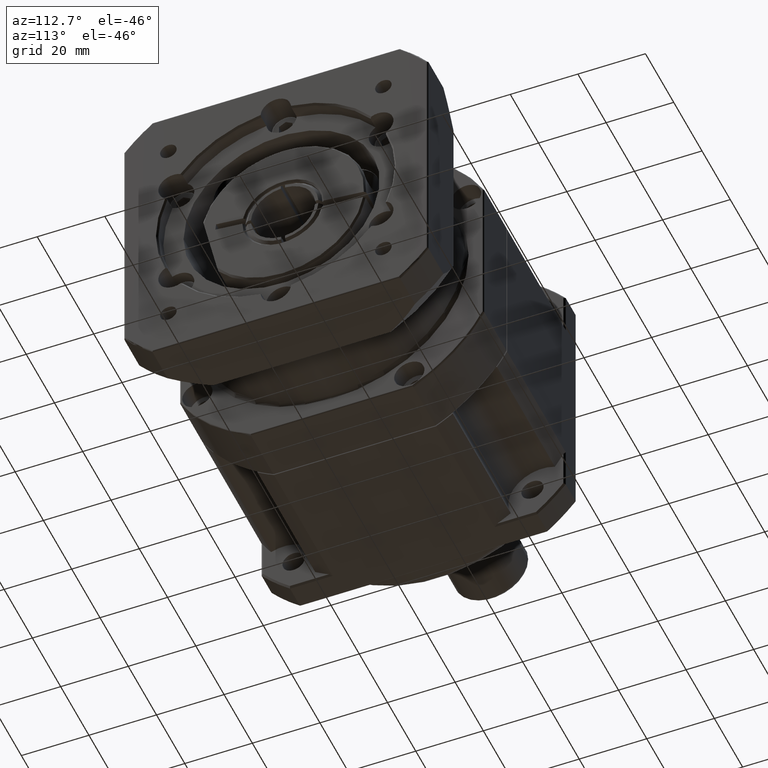
[diagram: clean part render]
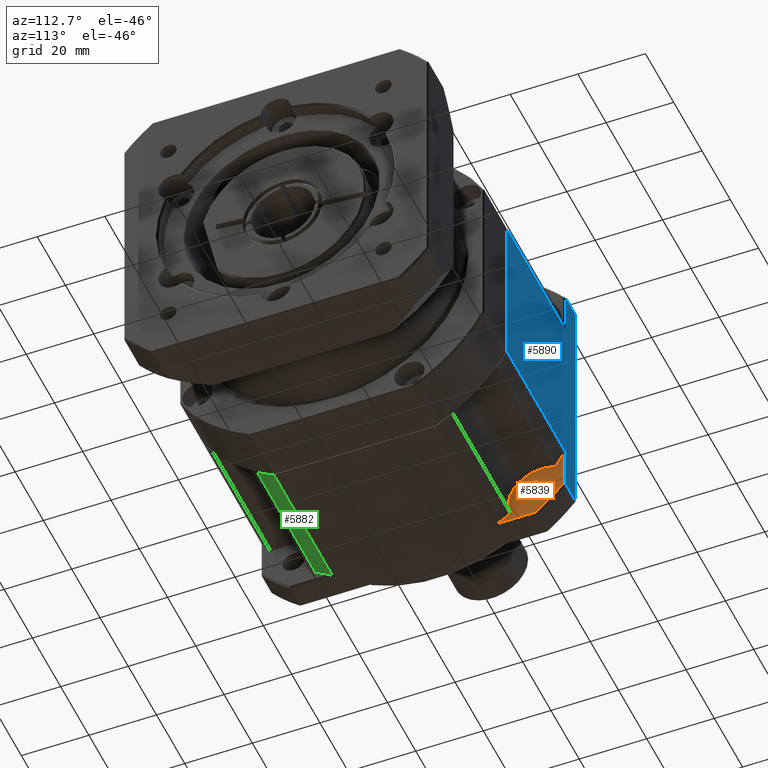
[diagram: same view with three faces highlighted in distinct colors, each labeled with its STEP entity id]
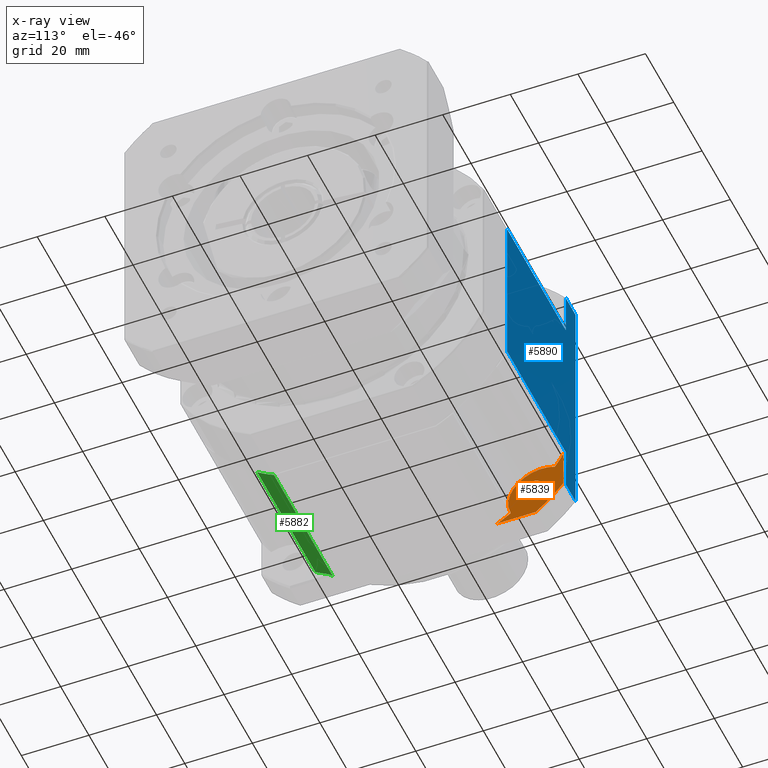
[diagram: x-ray of the same camera — body ghosted, the three highlighted faces saturated]
A machine part, auxiliary view with three faces highlighted in distinct colors.
The next image is the same camera in x-ray (body ghosted, the three faces saturated) — at least one of them is partly hidden behind the body in this view.
Their STEP definitions:

[orange] entity #5839 — the highlighted planar face has unit normal (1, 0, -0).
#261=LINE('',#9979,#528);
#264=LINE('',#9995,#531);
#528=VECTOR('',#7721,11.4994279054643);
#531=VECTOR('',#7730,11.4994279054643);
#876=PLANE('',#6461);
#1080=FACE_BOUND('',#1860,.T.);
#1355=FACE_OUTER_BOUND('',#1859,.T.);
#1859=EDGE_LOOP('',(#4482,#4483,#4484,#4485,#4486,#4487));
#1860=EDGE_LOOP('',(#4488));
#2322=CIRCLE('',#6460,57.5);
#2323=CIRCLE('',#6462,51.);
#2324=CIRCLE('',#6463,10.);
#2325=CIRCLE('',#6464,51.);
#2326=CIRCLE('',#6465,3.3);
#2743=VERTEX_POINT('',#9977);
#2744=VERTEX_POINT('',#9978);
#2749=VERTEX_POINT('',#9992);
#2750=VERTEX_POINT('',#9994);
#2751=VERTEX_POINT('',#10004);
#2752=VERTEX_POINT('',#10006);
#2753=VERTEX_POINT('',#10009);
#3377=EDGE_CURVE('',#2743,#2744,#261,.T.);
#3383=EDGE_CURVE('',#2749,#2750,#264,.T.);
#3386=EDGE_CURVE('',#2750,#2743,#2322,.T.);
#3387=EDGE_CURVE('',#2751,#2749,#2323,.T.);
#3388=EDGE_CURVE('',#2752,#2751,#2324,.T.);
#3389=EDGE_CURVE('',#2744,#2752,#2325,.T.);
#3390=EDGE_CURVE('',#2753,#2753,#2326,.T.);
#4482=ORIENTED_EDGE('',*,*,#3377,.F.);
#4483=ORIENTED_EDGE('',*,*,#3386,.F.);
#4484=ORIENTED_EDGE('',*,*,#3383,.F.);
#4485=ORIENTED_EDGE('',*,*,#3387,.F.);
#4486=ORIENTED_EDGE('',*,*,#3388,.F.);
#4487=ORIENTED_EDGE('',*,*,#3389,.F.);
#4488=ORIENTED_EDGE('',*,*,#3390,.T.);
#5839=ADVANCED_FACE('',(#1355,#1080),#876,.T.);
#6460=AXIS2_PLACEMENT_3D('',#10002,#7735,#7736);
#6461=AXIS2_PLACEMENT_3D('',#10003,#7737,#7738);
#6462=AXIS2_PLACEMENT_3D('',#10005,#7739,#7740);
#6463=AXIS2_PLACEMENT_3D('',#10007,#7741,#7742);
#6464=AXIS2_PLACEMENT_3D('',#10008,#7743,#7744);
#6465=AXIS2_PLACEMENT_3D('',#10010,#7745,#7746);
#7721=DIRECTION('',(6.10622663543786E-16,-1.,-1.39086273362758E-15));
#7730=DIRECTION('',(-4.82820056512866E-15,1.58823571578316E-15,-1.));
#7735=DIRECTION('center_axis',(-1.,-6.10622663543793E-16,4.82820056512866E-15));
#7736=DIRECTION('ref_axis',(-4.82820056512866E-15,1.19348975147199E-15,
-1.));
#7737=DIRECTION('center_axis',(1.,6.10622663543793E-16,-4.82820056512866E-15));
#7738=DIRECTION('ref_axis',(-4.9737991503207E-15,1.4210854715202E-15,-1.));
#7739=DIRECTION('center_axis',(1.,6.10622663543793E-16,-4.82820056512866E-15));
#7740=DIRECTION('ref_axis',(4.82820056512866E-15,-1.19348975147199E-15,
1.));
#7741=DIRECTION('center_axis',(-1.,-6.10622663543793E-16,4.82820056512866E-15));
#7742=DIRECTION('ref_axis',(-4.82820056512866E-15,1.07102507155726E-15,
-1.));
#7743=DIRECTION('center_axis',(1.,6.10622663543793E-16,-4.82820056512866E-15));
#7744=DIRECTION('ref_axis',(4.82820056512866E-15,-1.19348975147199E-15,
1.));
#7745=DIRECTION('center_axis',(-1.,-6.10622663543793E-16,4.82820056512866E-15));
#7746=DIRECTION('ref_axis',(4.82820056512866E-15,-1.07102507155726E-15,
1.));
#9977=CARTESIAN_POINT('',(-52.0297103443184,4.0209553331416,-33.6496122451687));
#9978=CARTESIAN_POINT('',(-52.0297103443184,-7.47847257232269,-33.6496122451687));
#9979=CARTESIAN_POINT('',(-52.0297103443184,-9.89332757892465,-33.6496122451687));
#9992=CARTESIAN_POINT('',(-52.0297103443183,12.1066724210753,-14.0644672517707));
#9994=CARTESIAN_POINT('',(-52.0297103443184,12.1066724210753,-25.5638951572349));
#9995=CARTESIAN_POINT('',(-52.0297103443181,12.1066724210752,33.3503877548313));
#10002=CARTESIAN_POINT('Origin',(-52.0297103443182,-32.3933275789247,10.8503877548313));
#10003=CARTESIAN_POINT('Origin',(-52.0297103443182,-32.3933275789247,10.8503877548313));
#10004=CARTESIAN_POINT('',(-52.0297103443184,9.60150351862406,-18.0880669566483));
#10005=CARTESIAN_POINT('Origin',(-52.0297103443182,-32.3933275789247,10.8503877548313));
#10006=CARTESIAN_POINT('',(-52.0297103443184,-3.45487286744508,-31.1444433427174));
#10007=CARTESIAN_POINT('Origin',(-52.0297103443184,5.79043860514891,-27.3333784292423));
#10008=CARTESIAN_POINT('Origin',(-52.0297103443182,-32.3933275789247,10.8503877548313));
#10009=CARTESIAN_POINT('',(-52.0297103443184,2.96201148040272,-27.8049513044961));
#10010=CARTESIAN_POINT('Origin',(-52.0297103443184,2.96201148040273,-24.5049513044961));

[blue] entity #5890 — the highlighted planar face has unit normal (-0, 1, 0).
#263=LINE('',#9991,#530);
#266=LINE('',#10018,#533);
#287=LINE('',#10138,#554);
#289=LINE('',#10157,#556);
#296=LINE('',#10215,#563);
#297=LINE('',#10219,#564);
#302=LINE('',#10237,#569);
#303=LINE('',#10240,#570);
#530=VECTOR('',#7727,12.592348927064);
#533=VECTOR('',#7752,12.592348927064);
#554=VECTOR('',#7833,73.184697854128);
#556=VECTOR('',#7849,7.);
#563=VECTOR('',#7928,41.5);
#564=VECTOR('',#7933,48.);
#569=VECTOR('',#7960,41.5);
#570=VECTOR('',#7965,7.);
#892=PLANE('',#6555);
#1406=FACE_OUTER_BOUND('',#1929,.T.);
#1929=EDGE_LOOP('',(#4695,#4696,#4697,#4698,#4699,#4700,#4701,#4702));
#2747=VERTEX_POINT('',#9989);
#2748=VERTEX_POINT('',#9990);
#2756=VERTEX_POINT('',#10015);
#2757=VERTEX_POINT('',#10017);
#2784=VERTEX_POINT('',#10124);
#2786=VERTEX_POINT('',#10133);
#2803=VERTEX_POINT('',#10214);
#2804=VERTEX_POINT('',#10218);
#3381=EDGE_CURVE('',#2747,#2748,#263,.T.);
#3393=EDGE_CURVE('',#2756,#2757,#266,.T.);
#3440=EDGE_CURVE('',#2786,#2784,#287,.T.);
#3447=EDGE_CURVE('',#2786,#2757,#289,.T.);
#3468=EDGE_CURVE('',#2803,#2748,#296,.T.);
#3470=EDGE_CURVE('',#2803,#2804,#297,.T.);
#3479=EDGE_CURVE('',#2756,#2804,#302,.T.);
#3480=EDGE_CURVE('',#2747,#2784,#303,.T.);
#4695=ORIENTED_EDGE('',*,*,#3381,.F.);
#4696=ORIENTED_EDGE('',*,*,#3480,.T.);
#4697=ORIENTED_EDGE('',*,*,#3440,.F.);
#4698=ORIENTED_EDGE('',*,*,#3447,.T.);
#4699=ORIENTED_EDGE('',*,*,#3393,.F.);
#4700=ORIENTED_EDGE('',*,*,#3479,.T.);
#4701=ORIENTED_EDGE('',*,*,#3470,.F.);
#4702=ORIENTED_EDGE('',*,*,#3468,.T.);
#5890=ADVANCED_FACE('',(#1406),#892,.T.);
#6555=AXIS2_PLACEMENT_3D('',#10239,#7963,#7964);
#7727=DIRECTION('',(4.82820056512866E-15,-1.58823571578316E-15,1.));
#7752=DIRECTION('',(4.82820056512866E-15,-1.58823571578316E-15,1.));
#7833=DIRECTION('',(-4.82820056512866E-15,1.58823571578316E-15,-1.));
#7849=DIRECTION('',(1.,6.10622663543793E-16,-4.82820056512866E-15));
#7928=DIRECTION('',(-1.,-6.10622663543793E-16,4.82820056512866E-15));
#7933=DIRECTION('',(4.82820056512866E-15,-1.58823571578316E-15,1.));
#7960=DIRECTION('',(1.,6.10622663543793E-16,-4.82820056512866E-15));
#7963=DIRECTION('center_axis',(-6.10622663543785E-16,1.,1.58823571578316E-15));
#7964=DIRECTION('ref_axis',(-4.79616346638068E-15,1.59872115546023E-15,
-1.));
#7965=DIRECTION('',(-1.,-6.10622663543793E-16,4.82820056512866E-15));
#9989=CARTESIAN_POINT('',(-52.5297103443184,12.6066724210753,-25.7419611722327));
#9990=CARTESIAN_POINT('',(-52.5297103443183,12.6066724210753,-13.1496122451687));
#9991=CARTESIAN_POINT('',(-52.5297103443181,12.6066724210752,33.3503877548313));
#10015=CARTESIAN_POINT('',(-52.5297103443181,12.6066724210752,34.8503877548314));
#10017=CARTESIAN_POINT('',(-52.529710344318,12.6066724210752,47.4427366818953));
#10018=CARTESIAN_POINT('',(-52.5297103443181,12.6066724210752,33.3503877548313));
#10124=CARTESIAN_POINT('',(-59.5297103443184,12.6066724210753,-25.7419611722326));
#10133=CARTESIAN_POINT('',(-59.529710344318,12.6066724210752,47.4427366818954));
#10138=CARTESIAN_POINT('',(-59.5297103443181,12.6066724210752,33.3503877548314));
#10157=CARTESIAN_POINT('',(-11.029710344318,12.6066724210752,47.4427366818951));
#10214=CARTESIAN_POINT('',(-11.0297103443183,12.6066724210753,-13.1496122451689));
#10215=CARTESIAN_POINT('',(-11.0297103443183,12.6066724210753,-13.1496122451689));
#10218=CARTESIAN_POINT('',(-11.0297103443181,12.6066724210753,34.8503877548311));
#10219=CARTESIAN_POINT('',(-11.0297103443184,12.6066724210754,-34.1496122451689));
#10237=CARTESIAN_POINT('',(-11.0297103443181,12.6066724210753,34.8503877548311));
#10239=CARTESIAN_POINT('Origin',(-11.029710344318,12.6066724210752,55.8503877548311));
#10240=CARTESIAN_POINT('',(-11.0297103443184,12.6066724210754,-25.7419611722329));

[green] entity #5882 — the highlighted cylindrical surface (partial cylindrical patch) has radius 51 mm, axis along (-1, -0, 0).
#15=ELLIPSE('',#6445,72.1248916810272,51.);
#295=LINE('',#10211,#562);
#298=LINE('',#10222,#565);
#562=VECTOR('',#7923,41.);
#565=VECTOR('',#7938,41.5);
#1398=FACE_OUTER_BOUND('',#1920,.T.);
#1920=EDGE_LOOP('',(#4652,#4653,#4654,#4655,#4656));
#2305=CIRCLE('',#6428,51.);
#2317=CIRCLE('',#6450,51.);
#2721=VERTEX_POINT('',#9913);
#2722=VERTEX_POINT('',#9915);
#2737=VERTEX_POINT('',#9955);
#2738=VERTEX_POINT('',#9957);
#2740=VERTEX_POINT('',#9969);
#3351=EDGE_CURVE('',#2721,#2722,#2305,.T.);
#3368=EDGE_CURVE('',#2737,#2738,#15,.F.);
#3373=EDGE_CURVE('',#2740,#2738,#2317,.T.);
#3467=EDGE_CURVE('',#2721,#2740,#295,.T.);
#3472=EDGE_CURVE('',#2722,#2737,#298,.T.);
#4652=ORIENTED_EDGE('',*,*,#3467,.T.);
#4653=ORIENTED_EDGE('',*,*,#3373,.T.);
#4654=ORIENTED_EDGE('',*,*,#3368,.F.);
#4655=ORIENTED_EDGE('',*,*,#3472,.F.);
#4656=ORIENTED_EDGE('',*,*,#3351,.F.);
#5337=CYLINDRICAL_SURFACE('',#6544,51.);
#5882=ADVANCED_FACE('',(#1398),#5337,.T.);
#6428=AXIS2_PLACEMENT_3D('',#9916,#7661,#7662);
#6445=AXIS2_PLACEMENT_3D('',#9958,#7700,#7701);
#6450=AXIS2_PLACEMENT_3D('',#9970,#7711,#7712);
#6544=AXIS2_PLACEMENT_3D('',#10221,#7936,#7937);
#7661=DIRECTION('center_axis',(1.,6.10622663543793E-16,-4.82820056512866E-15));
#7662=DIRECTION('ref_axis',(4.82820056512866E-15,-1.19348975147199E-15,
1.));
#7700=DIRECTION('center_axis',(0.70710678118655,1.41526389678572E-15,-0.707106781186545));
#7701=DIRECTION('ref_axis',(0.707106781186545,-4.12149270404497E-16,0.70710678118655));
#7711=DIRECTION('center_axis',(1.,6.10622663543793E-16,-4.82820056512866E-15));
#7712=DIRECTION('ref_axis',(4.82820056512866E-15,-1.19348975147199E-15,
1.));
#7923=DIRECTION('',(-1.,-6.10622663543793E-16,4.82820056512866E-15));
#7936=DIRECTION('center_axis',(-1.,-6.10622663543793E-16,4.82820056512866E-15));
#7937=DIRECTION('ref_axis',(4.82820056512866E-15,-1.19348975147199E-15,
1.));
#7938=DIRECTION('',(-1.,-6.10622663543793E-16,4.82820056512866E-15));
#9913=CARTESIAN_POINT('',(-11.0297103443184,-61.3317822904042,-31.1444433427177));
#9915=CARTESIAN_POINT('',(-11.0297103443184,-56.3933275789246,-34.149612245169));
#9916=CARTESIAN_POINT('Origin',(-11.0297103443182,-32.3933275789247,10.8503877548311));
#9955=CARTESIAN_POINT('',(-52.5297103443184,-56.3933275789246,-34.1496122451688));
#9957=CARTESIAN_POINT('',(-52.0297103443184,-57.3081825855266,-33.6496122451688));
#9958=CARTESIAN_POINT('Origin',(-7.52971034431897,-32.3933275789247,10.850387754831));
#9969=CARTESIAN_POINT('',(-52.0297103443184,-61.3317822904042,-31.1444433427175));
#9970=CARTESIAN_POINT('Origin',(-52.0297103443182,-32.3933275789247,10.8503877548313));
#10211=CARTESIAN_POINT('',(-11.0297103443184,-61.3317822904042,-31.1444433427177));
#10221=CARTESIAN_POINT('Origin',(-11.0297103443182,-32.3933275789247,10.8503877548311));
#10222=CARTESIAN_POINT('',(-11.0297103443184,-56.3933275789246,-34.149612245169));